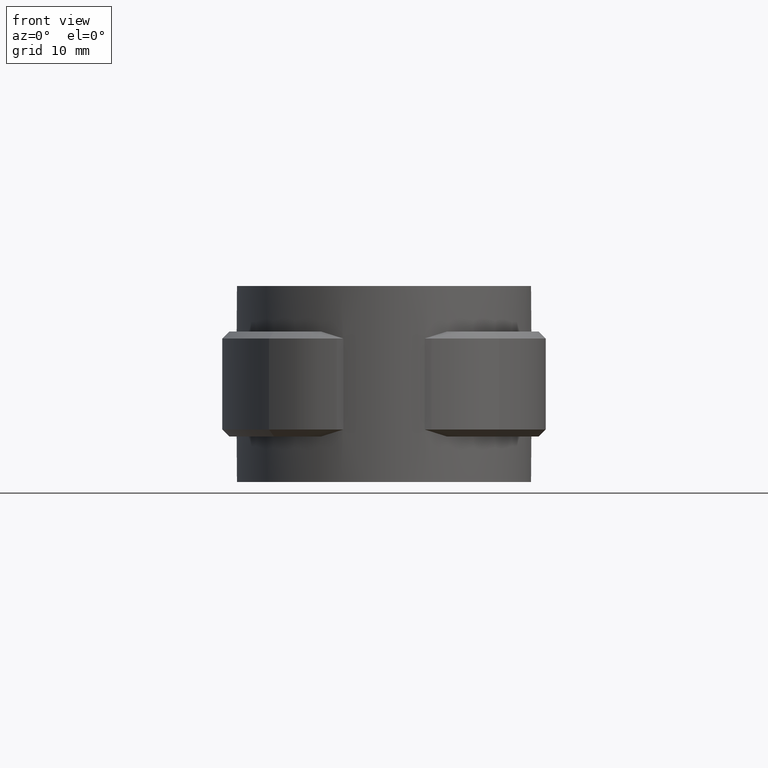
[diagram: clean part render]
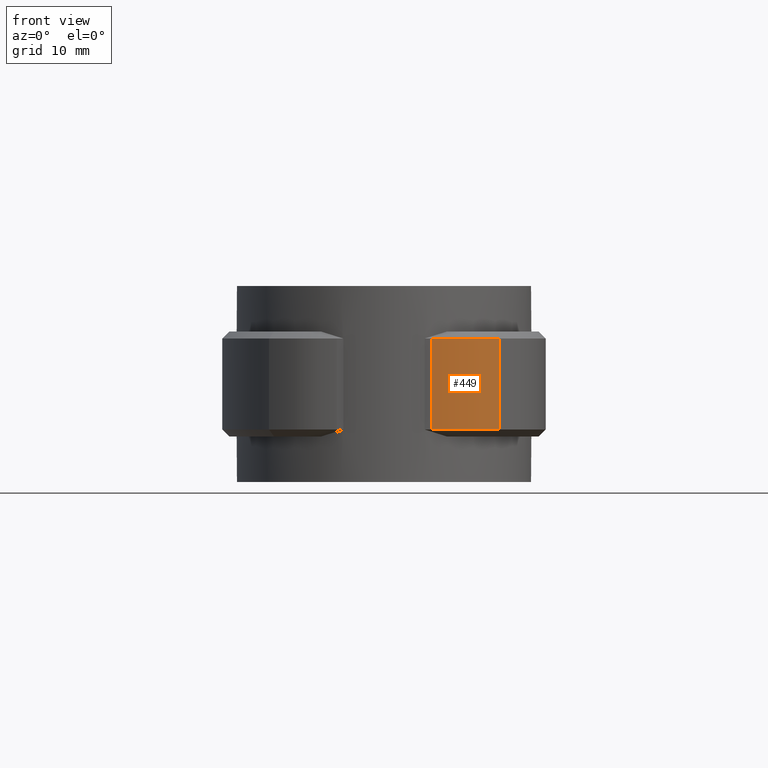
[diagram: same view with one face highlighted and labeled with its STEP entity id]
A machine part, front view. The second image highlights one B-rep face of the part: STEP entity #449.
In plain terms, the highlighted cylindrical surface (partial cylindrical patch) has radius 13.6 mm, axis along (0, 0, -1).
Its self-contained STEP definition (entity closure, byte-faithful):
#449 = ADVANCED_FACE( '', ( #893 ), #894, .T. );
#893 = FACE_OUTER_BOUND( '', #1921, .T. );
#894 = CYLINDRICAL_SURFACE( '', #1922, 13.6000000000000 );
#1921 = EDGE_LOOP( '', ( #4291, #4292, #4293, #4294 ) );
#1922 = AXIS2_PLACEMENT_3D( '', #4295, #4296, #4297 );
#4291 = ORIENTED_EDGE( '', *, *, #6844, .T. );
#4292 = ORIENTED_EDGE( '', *, *, #6881, .T. );
#4293 = ORIENTED_EDGE( '', *, *, #6798, .F. );
#4294 = ORIENTED_EDGE( '', *, *, #6795, .T. );
#4295 = CARTESIAN_POINT( '', ( 6.74778667416212, -6.68000000000001, -20.0000000000000 ) );
#4296 = DIRECTION( '', ( 0.000000000000000, 0.000000000000000, -1.00000000000000 ) );
#4297 = DIRECTION( '', ( 0.275275955036381, 0.961365252429485, 0.000000000000000 ) );
#6795 = EDGE_CURVE( '', #7876, #7874, #7877, .T. );
#6798 = EDGE_CURVE( '', #7876, #7881, #7882, .T. );
#6844 = EDGE_CURVE( '', #7874, #7960, #7962, .T. );
#6881 = EDGE_CURVE( '', #7960, #7881, #8022, .T. );
#7874 = VERTEX_POINT( '', #10606 );
#7876 = VERTEX_POINT( '', #10609 );
#7877 = CIRCLE( '', #10610, 13.6000000000000 );
#7881 = VERTEX_POINT( '', #10618 );
#7882 = LINE( '', #10619, #10620 );
#7960 = VERTEX_POINT( '', #10795 );
#7962 = LINE( '', #10797, #10798 );
#8022 = CIRCLE( '', #10918, 13.6000000000000 );
#10606 = CARTESIAN_POINT( '', ( 16.4128629004502, -16.2479831490258, -19.0000000000000 ) );
#10609 = CARTESIAN_POINT( '', ( 6.74778667416212, -20.2800000000000, -19.0000000000000 ) );
#10610 = AXIS2_PLACEMENT_3D( '', #12952, #12953, #12954 );
#10618 = CARTESIAN_POINT( '', ( 6.74778667416212, -20.2800000000000, -6.00000000000000 ) );
#10619 = CARTESIAN_POINT( '', ( 6.74778667416212, -20.2800000000000, -20.0000000000000 ) );
#10620 = VECTOR( '', #12956, 1000.00000000000 );
#10795 = CARTESIAN_POINT( '', ( 16.4128629004502, -16.2479831490258, -6.00000000000000 ) );
#10797 = CARTESIAN_POINT( '', ( 16.4128629004502, -16.2479831490258, -20.0000000000000 ) );
#10798 = VECTOR( '', #13023, 1000.00000000000 );
#10918 = AXIS2_PLACEMENT_3D( '', #13069, #13070, #13071 );
#12952 = CARTESIAN_POINT( '', ( 6.74778667416212, -6.68000000000001, -19.0000000000000 ) );
#12953 = DIRECTION( '', ( 0.000000000000000, 0.000000000000000, 1.00000000000000 ) );
#12954 = DIRECTION( '', ( 1.00000000000000, 0.000000000000000, 0.000000000000000 ) );
#12956 = DIRECTION( '', ( 0.000000000000000, 0.000000000000000, 1.00000000000000 ) );
#13023 = DIRECTION( '', ( 0.000000000000000, 0.000000000000000, 1.00000000000000 ) );
#13069 = CARTESIAN_POINT( '', ( 6.74778667416212, -6.68000000000001, -6.00000000000000 ) );
#13070 = DIRECTION( '', ( 0.000000000000000, 0.000000000000000, -1.00000000000000 ) );
#13071 = DIRECTION( '', ( -1.00000000000000, 0.000000000000000, 0.000000000000000 ) );